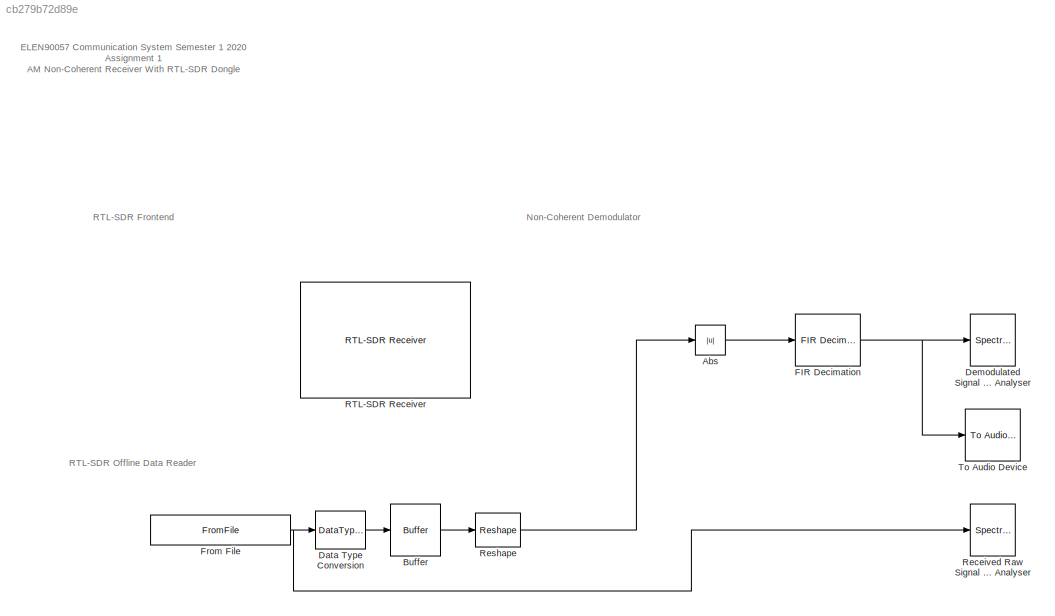
MODEL slx_cb279b72d89e
KIND model
CONFIG AbsTol = auto
CONFIG EnableMultiTasking = off
CONFIG FixedStep = auto
CONFIG MaxStep = auto
CONFIG MinStep = auto
CONFIG RelTol = 1e-3
CONFIG SampleTimeConstraint = Unconstrained
CONFIG Solver = VariableStepAuto
CONFIG SolverName = VariableStepAuto
CONFIG StartTime = 0.0
CONFIG StopTime = inf
BLOCK [Abs] Abs
  SaturateOnIntegerOverflow = off
BLOCK [Buffer] Buffer
  N = 4096
BLOCK [DataTypeConversion] Data Type Conversion
  OutDataTypeStr = single
  RndMeth = Floor
  SaturateOnIntegerOverflow = off
BLOCK [SpectrumAnalyzer] Demodulated Signal Spectrum Analyser
  Ports = [1]
  ScopeSpecificationString = spbscopes.SpectrumAnalyzerBlockCfg('CurrentConfiguration', extmgr.ConfigurationSet(extmgr.Configuration('Core','General UI',true,'ShowStatusbar',false,'FigureColor',[0.941176470588235 0.941176470588235 0.941176470588235]),extmgr.Configuration('Core','Source UI',true),extmgr.Configuration('Sources','WiredSimulink',true),extmgr.Configuration('Sources','SPTool',false),extmgr.Configuration('Sources','...<+2827ch>
BLOCK [Reference] FIR Decimation  REF=dspmlti4/FIR
Decimation
  Ports = [1, 1]
  SourceBlock = dspmlti4/FIR\nDecimation
  SourceProductBaseCode = DS
  SourceProductName = DSP System Toolbox
  SourceType = FIR Decimation
  UserDataPersistent = on
BLOCK [FromFile] From File 
  ExtrapolationAfterLastDataPoint = Ground value
  FileName = A1_Nonco_AM_data_100-4.mat
  OutDataTypeStr = single
  SampleTime = 4096/240e3
BLOCK [Reference] RTL-SDR Receiver   REF=sdrrlib/RTL-SDR
Receiver
  Commented = on
  Ports = [2, 1]
  SourceBlock = sdrrlib/RTL-SDR\nReceiver
  SourceProductBaseCode = RTLSDR
  SourceProductName = Communications Toolbox Support Package for RTL-SDR Radio
  SourceType = RTL-SDR Receiver
BLOCK [SpectrumAnalyzer] Received Raw Signal Spectrum Analyser
  Ports = [1]
  ScopeSpecificationString = spbscopes.SpectrumAnalyzerBlockCfg('CurrentConfiguration', extmgr.ConfigurationSet(extmgr.Configuration('Core','General UI',true,'ShowStatusbar',false,'FigureColor',[0.941176470588235 0.941176470588235 0.941176470588235]),extmgr.Configuration('Core','Source UI',true),extmgr.Configuration('Sources','WiredSimulink',true),extmgr.Configuration('Sources','Simulink',false),extmgr.Configuration('Sources'...<+2533ch>
BLOCK [Reshape] Reshape
  Ports = [1, 1]
BLOCK [Reference] To Audio Device  REF=dspobslib/To Audio
Device
  Ports = [1]
  SourceBlock = dspobslib/To Audio\nDevice
  SourceProductBaseCode = DS
  SourceProductName = DSP System Toolbox
  SourceType = To Audio Device
ANNOTATION (root): ELEN90057 Communication System Semester 1 2020 Assignment 1 AM Non-Coherent Receiver With RTL-SDR Dongle
ANNOTATION (root): Non-Coherent Demodulator
ANNOTATION (root): RTL-SDR Frontend
ANNOTATION (root): RTL-SDR Offline Data Reader
LINE Abs:1 -> FIR Decimation:1
LINE Buffer:1 -> Reshape:1
LINE Data Type Conversion:1 -> Buffer:1
NET FIR Decimation:1 -> Demodulated Signal Spectrum Analyser:1, To Audio Device:1
NET From File :1 -> Data Type Conversion:1, Received Raw Signal Spectrum Analyser:1
LINE Reshape:1 -> Abs:1
note: NET lines group one-source signal fan-out (src -> all destinations, sorted); 1:1 wires keep LINE
